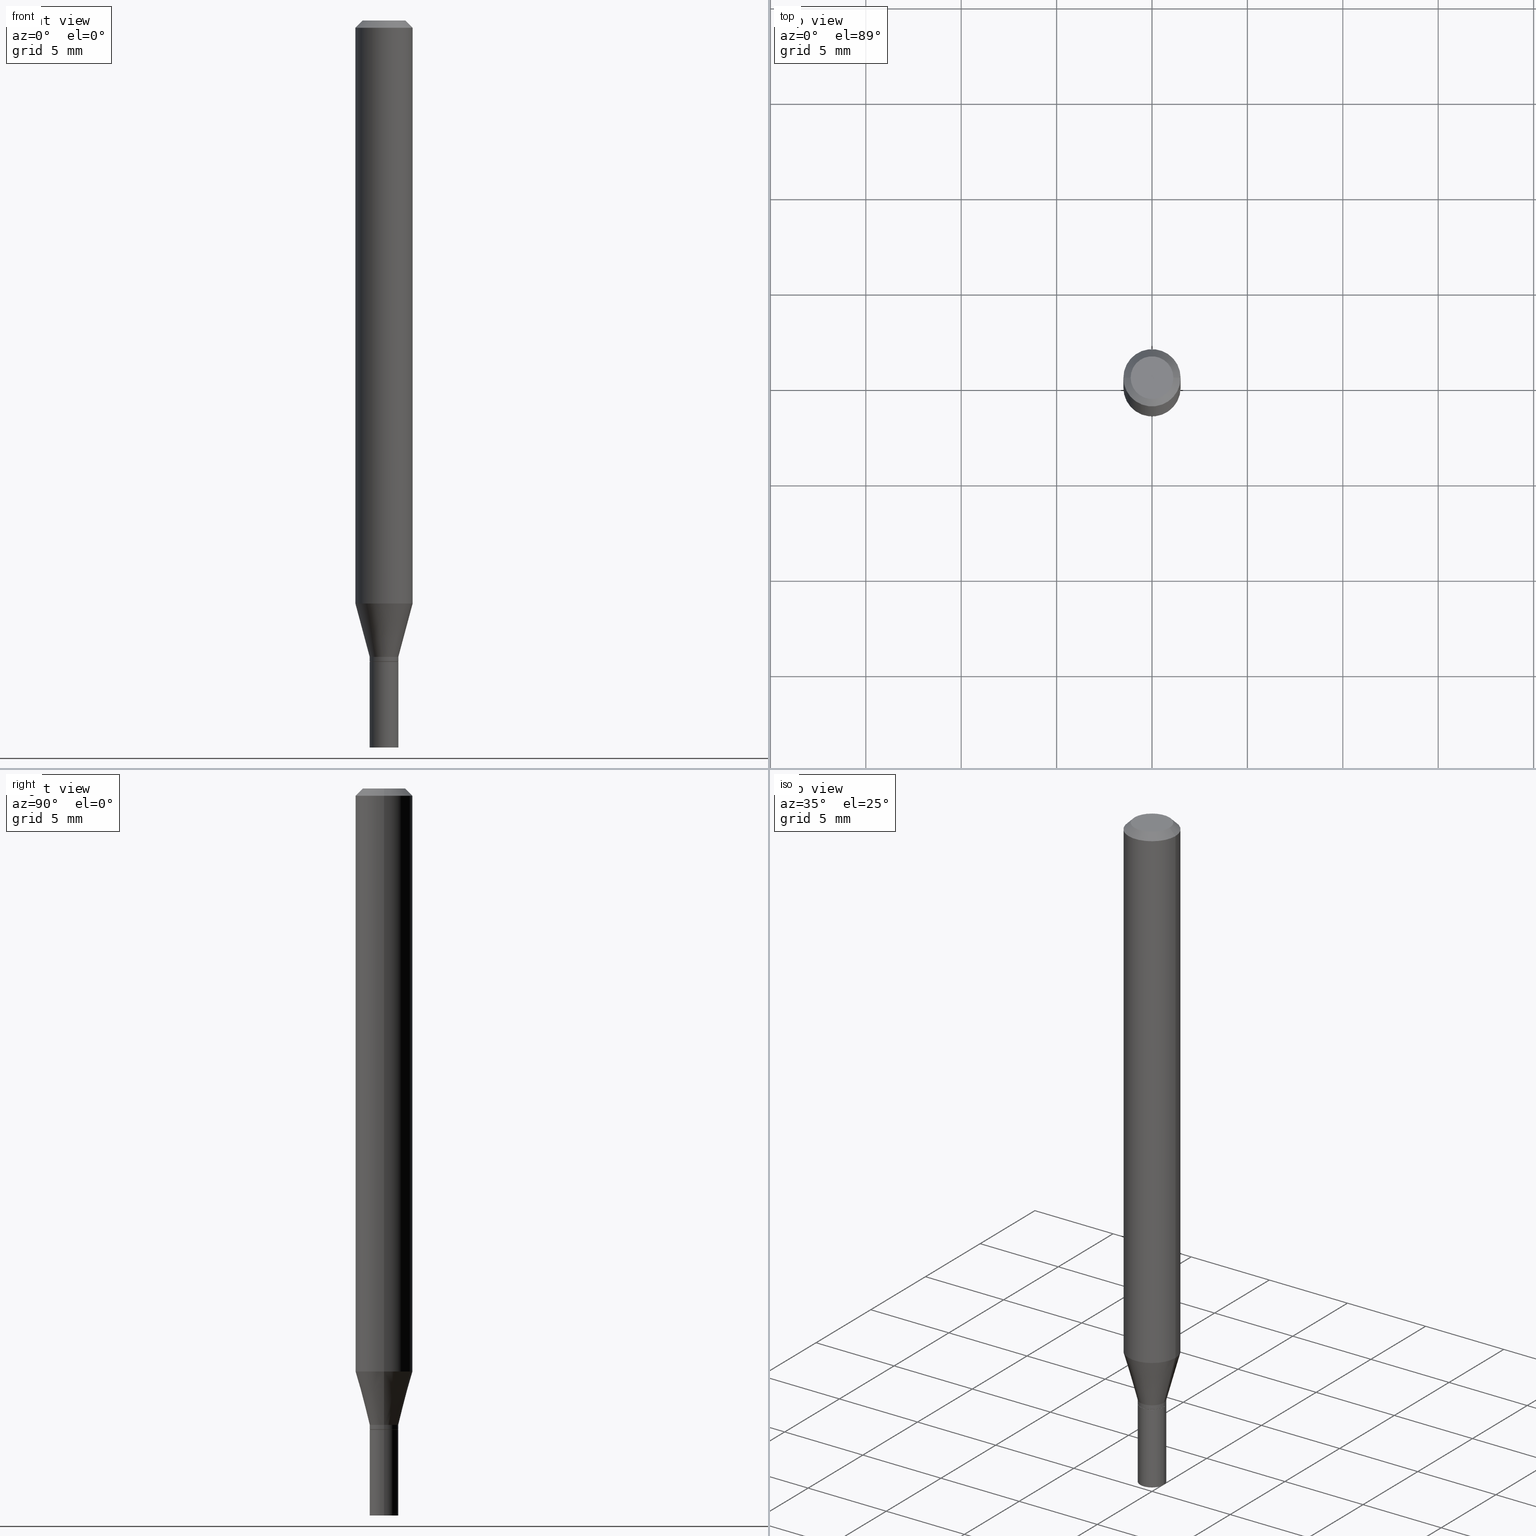
[diagram: canonical four-view strip — front | top / right | iso, engineering-drawing reading convention]
A machine part, canonical four-view strip (front | top / right | iso — engineering-drawing reading convention). The complete STEP part file that produces these views, byte-faithful:
ISO-10303-21;
HEADER;
FILE_DESCRIPTION (( 'STEP AP203' ),
    '1' );
FILE_NAME ('48523.STEP',
    '2024-03-12T19:28:40',
    ( '' ),
    ( '' ),
    'SwSTEP 2.0',
    'SolidWorks 2023',
    '' );
FILE_SCHEMA (( 'CONFIG_CONTROL_DESIGN' ));
ENDSEC;

DATA;
#1 = CARTESIAN_POINT ( 'NONE',  ( 0.02954999999999999988, -2.063465471256291914E-16, 1.440910237247699070E-30 ) ) ;
#2 = DIRECTION ( 'NONE',  ( -2.445468806185136877E-29, 3.491481338843145188E-15, 1.000000000000000000 ) ) ;
#3 = DIRECTION ( 'NONE',  ( -2.445468806185136597E-29, 3.491481338843145583E-15, 1.000000000000000000 ) ) ;
#4 = CIRCLE ( 'NONE', #429, 0.02954999999999992008 ) ;
#5 = CC_DESIGN_SECURITY_CLASSIFICATION ( #150, ( #104 ) ) ;
#6 = EDGE_CURVE ( 'NONE', #121, #237, #211, .T. ) ;
#7 = EDGE_CURVE ( 'NONE', #201, #387, #37, .T. ) ;
#8 = DIRECTION ( 'NONE',  ( 1.000000000000000000, -6.982962677686279332E-15, 0.000000000000000000 ) ) ;
#9 = DATE_TIME_ROLE ( 'creation_date' ) ;
#10 = VECTOR ( 'NONE', #200, 39.37007874015748854 ) ;
#11 = VERTEX_POINT ( 'NONE', #28 ) ;
#12 = LINE ( 'NONE', #383, #225 ) ;
#13 = DIRECTION ( 'NONE',  ( -2.438088387897960049E-29, 3.491481338843145188E-15, 1.000000000000000000 ) ) ;
#14 = AXIS2_PLACEMENT_3D ( 'NONE', #233, #312, #123 ) ;
#15 = AXIS2_PLACEMENT_3D ( 'NONE', #368, #31, #425 ) ;
#16 = ORIENTED_EDGE ( 'NONE', *, *, #205, .F. ) ;
#17 = CARTESIAN_POINT ( 'NONE',  ( 3.668203209277705088E-31, -5.237222008264718399E-17, -0.01499999999999999944 ) ) ;
#18 = CARTESIAN_POINT ( 'NONE',  ( -8.641182519006289553E-45, 1.233731848647591164E-30, 3.533548453838711334E-16 ) ) ;
#19 = ORIENTED_EDGE ( 'NONE', *, *, #298, .F. ) ;
#20 = LINE ( 'NONE', #206, #75 ) ;
#21 = ORIENTED_EDGE ( 'NONE', *, *, #30, .F. ) ;
#22 = CARTESIAN_POINT ( 'NONE',  ( -0.05904999999999999832, -3.780343132802594460E-15, -1.202904501176718099 ) ) ;
#23 = DIRECTION ( 'NONE',  ( 1.000000000000000000, -6.982962677686273021E-15, 0.000000000000000000 ) ) ;
#24 = AXIS2_PLACEMENT_3D ( 'NONE', #176, #105, #251 ) ;
#25 = VERTEX_POINT ( 'NONE', #175 ) ;
#26 = CARTESIAN_POINT ( 'NONE',  ( 2.941665434447356051E-29, -4.199918618268933165E-15, -1.202904501176718099 ) ) ;
#27 = PRODUCT ( '48523', '48523', '', ( #400 ) ) ;
#28 = CARTESIAN_POINT ( 'NONE',  ( -0.02954999999999992008, -4.406820395935182785E-15, -1.322300000000000253 ) ) ;
#29 = FACE_OUTER_BOUND ( 'NONE', #452, .T. ) ;
#30 = EDGE_CURVE ( 'NONE', #356, #25, #156, .T. ) ;
#31 = DIRECTION ( 'NONE',  ( 2.445468806185136597E-29, -3.491481338843145583E-15, -1.000000000000000000 ) ) ;
#32 = CONICAL_SURFACE ( 'NONE', #189, 0.05905000000000001914, 0.7853981633974372878 ) ;
#33 = EDGE_CURVE ( 'NONE', #35, #121, #398, .T. ) ;
#34 = FACE_OUTER_BOUND ( 'NONE', #195, .T. ) ;
#35 = VERTEX_POINT ( 'NONE', #255 ) ;
#36 = APPROVAL_DATE_TIME ( #352, #135 ) ;
#37 = LINE ( 'NONE', #330, #188 ) ;
#38 = LENGTH_MEASURE_WITH_UNIT ( LENGTH_MEASURE( 0.02539999999999999897 ), #364 );
#39 = AXIS2_PLACEMENT_3D ( 'NONE', #17, #203, #308 ) ;
#40 = AXIS2_PLACEMENT_3D ( 'NONE', #461, #210, #424 ) ;
#41 = PERSON_AND_ORGANIZATION ( #159, #318 ) ;
#42 = EDGE_LOOP ( 'NONE', ( #21, #406, #268, #404 ) ) ;
#43 = ADVANCED_FACE ( 'NONE', ( #73 ), #220, .F. ) ;
#44 = COORDINATED_UNIVERSAL_TIME_OFFSET ( 5, 0, .BEHIND. ) ;
#45 = ORIENTED_EDGE ( 'NONE', *, *, #183, .F. ) ;
#46 = ADVANCED_FACE ( 'NONE', ( #128 ), #154, .T. ) ;
#47 = CONICAL_SURFACE ( 'NONE', #80, 0.02904999999999999596, 0.7853981633974739252 ) ;
#48 = AXIS2_PLACEMENT_3D ( 'NONE', #323, #288, #426 ) ;
#49 = CARTESIAN_POINT ( 'NONE',  ( 0.000000000000000000, 0.000000000000000000, 0.000000000000000000 ) ) ;
#50 = VERTEX_POINT ( 'NONE', #120 ) ;
#51 = DIRECTION ( 'NONE',  ( 1.000000000000000000, -6.982962677686279332E-15, 0.000000000000000000 ) ) ;
#52 = VERTEX_POINT ( 'NONE', #278 ) ;
#53 = LINE ( 'NONE', #300, #89 ) ;
#54 = DIRECTION ( 'NONE',  ( 1.000000000000000000, -6.982962677686261977E-15, 0.000000000000000000 ) ) ;
#55 = VECTOR ( 'NONE', #140, 39.37007874015748143 ) ;
#56 = ORIENTED_EDGE ( 'NONE', *, *, #281, .T. ) ;
#57 = CARTESIAN_POINT ( 'NONE',  ( -0.02954999999999992702, -4.374349619483941241E-15, -1.313000000000000167 ) ) ;
#58 = FACE_OUTER_BOUND ( 'NONE', #142, .T. ) ;
#59 = EDGE_LOOP ( 'NONE', ( #444, #146, #381, #155 ) ) ;
#60 = DIRECTION ( 'NONE',  ( 1.000000000000000000, -6.982962677686266711E-15, 4.876176775795935793E-29 ) ) ;
#61 = ORIENTED_EDGE ( 'NONE', *, *, #152, .F. ) ;
#62 = ADVANCED_FACE ( 'NONE', ( #81 ), #447, .T. ) ;
#63 = DIRECTION ( 'NONE',  ( 1.000000000000000000, -6.982962677686261977E-15, 0.000000000000000000 ) ) ;
#64 = VECTOR ( 'NONE', #125, 39.37007874015748143 ) ;
#65 = APPROVAL_PERSON_ORGANIZATION ( #70, #78, #326 ) ;
#66 = APPROVAL_DATE_TIME ( #422, #78 ) ;
#67 = EDGE_CURVE ( 'NONE', #387, #229, #391, .T. ) ;
#68 = ORIENTED_EDGE ( 'NONE', *, *, #226, .T. ) ;
#69 = CIRCLE ( 'NONE', #296, 0.05904999999999999832 ) ;
#70 = PERSON_AND_ORGANIZATION ( #159, #318 ) ;
#71 = DIRECTION ( 'NONE',  ( 0.7071067811865656694, -2.468850131082446387E-15, 0.7071067811865294761 ) ) ;
#72 = EDGE_CURVE ( 'NONE', #52, #437, #360, .T. ) ;
#73 = FACE_OUTER_BOUND ( 'NONE', #339, .T. ) ;
#74 = CALENDAR_DATE ( 2024, 12, 3 ) ;
#75 = VECTOR ( 'NONE', #443, 39.37007874015748854 ) ;
#76 = LOCAL_TIME ( 15, 28, 40.00000000000000000, #218 ) ;
#77 = ORIENTED_EDGE ( 'NONE', *, *, #366, .F. ) ;
#78 = APPROVAL ( #328, 'UNSPECIFIED' ) ;
#79 = VERTEX_POINT ( 'NONE', #92 ) ;
#80 = AXIS2_PLACEMENT_3D ( 'NONE', #91, #386, #242 ) ;
#81 = FACE_OUTER_BOUND ( 'NONE', #59, .T. ) ;
#82 = ORIENTED_EDGE ( 'NONE', *, *, #7, .T. ) ;
#83 = APPROVAL ( #399, 'UNSPECIFIED' ) ;
#84 = FACE_OUTER_BOUND ( 'NONE', #385, .T. ) ;
#85 = ORIENTED_EDGE ( 'NONE', *, *, #33, .T. ) ;
#86 = DIRECTION ( 'NONE',  ( 1.000000000000000000, -6.982962677686273021E-15, 0.000000000000000000 ) ) ;
#87 = EDGE_LOOP ( 'NONE', ( #371, #223, #369, #118 ) ) ;
#88 = DIRECTION ( 'NONE',  ( -2.445468806185136597E-29, 3.491481338843145583E-15, 1.000000000000000000 ) ) ;
#89 = VECTOR ( 'NONE', #438, 39.37007874015748143 ) ;
#90 = ORIENTED_EDGE ( 'NONE', *, *, #122, .F. ) ;
#91 = CARTESIAN_POINT ( 'NONE',  ( 3.234866136821698561E-29, -4.618531515021712857E-15, -1.322800000000000198 ) ) ;
#92 = CARTESIAN_POINT ( 'NONE',  ( 0.02954999999999999988, -5.443568555390347787E-15, -1.500000000000000222 ) ) ;
#93 = ADVANCED_FACE ( 'NONE', ( #58 ), #194, .F. ) ;
#94 = ORIENTED_EDGE ( 'NONE', *, *, #67, .F. ) ;
#95 = MANIFOLD_SOLID_BREP ( 'Body-Move/Copy2[1]', #148 ) ;
#96 = CARTESIAN_POINT ( 'NONE',  ( 0.05904999999999999832, -4.612262564386308085E-15, -1.202904501176718099 ) ) ;
#97 = VECTOR ( 'NONE', #71, 39.37007874015748143 ) ;
#98 = CIRCLE ( 'NONE', #264, 0.02954999999999992702 ) ;
#99 = CARTESIAN_POINT ( 'NONE',  ( 0.000000000000000000, 0.000000000000000000, 0.000000000000000000 ) ) ;
#100 = CYLINDRICAL_SURFACE ( 'NONE', #40, 0.02954999999999999988 ) ;
#101 = PERSON_AND_ORGANIZATION ( #159, #318 ) ;
#102 = VECTOR ( 'NONE', #244, 39.37007874015748143 ) ;
#103 = PERSON_AND_ORGANIZATION ( #159, #318 ) ;
#104 = PRODUCT_DEFINITION_FORMATION_WITH_SPECIFIED_SOURCE ( 'ANY', '', #27, .NOT_KNOWN. ) ;
#105 = DIRECTION ( 'NONE',  ( -2.445468806185136597E-29, 3.491481338843145583E-15, 1.000000000000000000 ) ) ;
#106 = PERSON_AND_ORGANIZATION ( #159, #318 ) ;
#107 = DIRECTION ( 'NONE',  ( -2.445468806185136597E-29, 3.491481338843145583E-15, 1.000000000000000000 ) ) ;
#108 = APPROVAL_ROLE ( '' ) ;
#109 = ORIENTED_EDGE ( 'NONE', *, *, #165, .T. ) ;
#110 = CONICAL_SURFACE ( 'NONE', #306, 0.02904999999999999596, 0.7853981633974739252 ) ;
#111 = CONICAL_SURFACE ( 'NONE', #15, 0.05905000000000001914, 0.7853981633974372878 ) ;
#112 = DATE_TIME_ROLE ( 'classification_date' ) ;
#113 = EDGE_CURVE ( 'NONE', #25, #356, #331, .T. ) ;
#114 = EDGE_CURVE ( 'NONE', #186, #201, #245, .T. ) ;
#115 = LINE ( 'NONE', #1, #316 ) ;
#116 = AXIS2_PLACEMENT_3D ( 'NONE', #262, #107, #337 ) ;
#117 = DIRECTION ( 'NONE',  ( 1.000000000000000000, -6.982962677686265922E-15, 4.876176775795935793E-29 ) ) ;
#118 = ORIENTED_EDGE ( 'NONE', *, *, #6, .F. ) ;
#119 = DIRECTION ( 'NONE',  ( -2.445468806185136597E-29, 3.491481338843145583E-15, 1.000000000000000000 ) ) ;
#120 = CARTESIAN_POINT ( 'NONE',  ( -0.02954999999999992702, -4.077346376143267456E-15, -1.313000000000000167 ) ) ;
#121 = VERTEX_POINT ( 'NONE', #173 ) ;
#122 = EDGE_CURVE ( 'NONE', #275, #79, #343, .T. ) ;
#123 = DIRECTION ( 'NONE',  ( 1.000000000000000000, -6.982962677686267499E-15, 4.876176775795936353E-29 ) ) ;
#124 = ORIENTED_EDGE ( 'NONE', *, *, #234, .T. ) ;
#125 = DIRECTION ( 'NONE',  ( -0.7071067811865396902, 2.468850131082174625E-15, -0.7071067811865553443 ) ) ;
#126 = AXIS2_PLACEMENT_3D ( 'NONE', #239, #286, #23 ) ;
#127 = ADVANCED_FACE ( 'NONE', ( #29 ), #170, .T. ) ;
#128 = FACE_OUTER_BOUND ( 'NONE', #376, .T. ) ;
#129 = ORIENTED_EDGE ( 'NONE', *, *, #174, .T. ) ;
#130 = FACE_OUTER_BOUND ( 'NONE', #401, .T. ) ;
#131 = DIRECTION ( 'NONE',  ( -2.445468806185136877E-29, 3.491481338843145188E-15, 1.000000000000000000 ) ) ;
#132 = ORIENTED_EDGE ( 'NONE', *, *, #370, .F. ) ;
#133 = COORDINATED_UNIVERSAL_TIME_OFFSET ( 5, 0, .BEHIND. ) ;
#134 = ORIENTED_EDGE ( 'NONE', *, *, #172, .F. ) ;
#135 = APPROVAL ( #333, 'UNSPECIFIED' ) ;
#136 = AXIS2_PLACEMENT_3D ( 'NONE', #196, #119, #388 ) ;
#137 = PERSON_AND_ORGANIZATION ( #159, #318 ) ;
#138 = DIRECTION ( 'NONE',  ( -2.445468806185136877E-29, 3.491481338843145188E-15, 1.000000000000000000 ) ) ;
#139 = CALENDAR_DATE ( 2024, 12, 3 ) ;
#140 = DIRECTION ( 'NONE',  ( -2.445468806185136877E-29, 3.491481338843145188E-15, 1.000000000000000000 ) ) ;
#141 = FACE_OUTER_BOUND ( 'NONE', #313, .T. ) ;
#142 = EDGE_LOOP ( 'NONE', ( #61, #90 ) ) ;
#143 =( NAMED_UNIT ( * ) PLANE_ANGLE_UNIT ( ) SI_UNIT ( $, .RADIAN. ) );
#144 = VECTOR ( 'NONE', #411, 39.37007874015748143 ) ;
#145 = DIRECTION ( 'NONE',  ( -1.000000000000000000, 6.982962677686265922E-15, -4.876176775795935793E-29 ) ) ;
#146 = ORIENTED_EDGE ( 'NONE', *, *, #412, .T. ) ;
#147 = DIRECTION ( 'NONE',  ( 2.438088387897960049E-29, -3.491481338843145188E-15, -1.000000000000000000 ) ) ;
#148 = CLOSED_SHELL ( 'NONE', ( #421, #93, #46, #427 ) ) ;
#149 = AXIS2_PLACEMENT_3D ( 'NONE', #99, #177, #249 ) ;
#150 = SECURITY_CLASSIFICATION ( '', '', #458 ) ;
#151 = APPROVAL_ROLE ( '' ) ;
#152 = EDGE_CURVE ( 'NONE', #79, #275, #432, .T. ) ;
#153 = CARTESIAN_POINT ( 'NONE',  ( 0.000000000000000000, 0.000000000000000000, 0.000000000000000000 ) ) ;
#154 = CYLINDRICAL_SURFACE ( 'NONE', #434, 0.02954999999999999988 ) ;
#155 = ORIENTED_EDGE ( 'NONE', *, *, #181, .F. ) ;
#156 = CIRCLE ( 'NONE', #423, 0.04404999999999999888 ) ;
#157 = DIRECTION ( 'NONE',  ( -2.445468806185136597E-29, 3.491481338843145583E-15, 1.000000000000000000 ) ) ;
#158 = CIRCLE ( 'NONE', #39, 0.05905000000000001914 ) ;
#159 = PERSON ( 'UNSPECIFIED', 'UNSPECIFIED', 'UNSPECIFIED', ('UNSPECIFIED'), ('UNSPECIFIED'), ('UNSPECIFIED') ) ;
#160 = LOCAL_TIME ( 15, 28, 40.00000000000000000, #133 ) ;
#161 = ORIENTED_EDGE ( 'NONE', *, *, #301, .T. ) ;
#162 = CARTESIAN_POINT ( 'NONE',  ( -0.05905000000000002608, -1.706569933709451418E-15, -0.01499999999999999944 ) ) ;
#163 = DIRECTION ( 'NONE',  ( 1.000000000000000000, -6.982962677686265922E-15, 4.819687581474398999E-29 ) ) ;
#164 = ORIENTED_EDGE ( 'NONE', *, *, #152, .T. ) ;
#165 = EDGE_CURVE ( 'NONE', #237, #11, #4, .T. ) ;
#166 = CARTESIAN_POINT ( 'NONE',  ( 3.234866136821698561E-29, -4.618531515021712857E-15, -1.322800000000000198 ) ) ;
#167 = EDGE_LOOP ( 'NONE', ( #77, #305, #124, #68 ) ) ;
#168 = CARTESIAN_POINT ( 'NONE',  ( -0.05905000000000001914, 3.599717260347269535E-16, -0.01499999999999999944 ) ) ;
#169 = CIRCLE ( 'NONE', #136, 0.02904999999999999596 ) ;
#170 = CYLINDRICAL_SURFACE ( 'NONE', #149, 0.05905000000000000526 ) ;
#171 = EDGE_LOOP ( 'NONE', ( #232, #161, #315, #45 ) ) ;
#172 = EDGE_CURVE ( 'NONE', #275, #52, #325, .T. ) ;
#173 = CARTESIAN_POINT ( 'NONE',  ( 0.02904999999999999596, -4.821386580808499461E-15, -1.322800000000000198 ) ) ;
#174 = EDGE_CURVE ( 'NONE', #186, #229, #455, .T. ) ;
#175 = CARTESIAN_POINT ( 'NONE',  ( -0.04404999999999999888, 3.337856159934041534E-16, 3.533548453838689148E-16 ) ) ;
#176 = CARTESIAN_POINT ( 'NONE',  ( 3.210900542521084585E-29, -4.584314997901050598E-15, -1.313000000000000167 ) ) ;
#177 = DIRECTION ( 'NONE',  ( -2.445468806185136597E-29, 3.491481338843145583E-15, 1.000000000000000000 ) ) ;
#178 = CARTESIAN_POINT ( 'NONE',  ( 0.02904999999999999596, -4.821386580808499461E-15, -1.322800000000000198 ) ) ;
#179 = AXIS2_PLACEMENT_3D ( 'NONE', #416, #302, #380 ) ;
#180 = CARTESIAN_POINT ( 'NONE',  ( 3.210900542521084585E-29, -4.584314997901050598E-15, -1.313000000000000167 ) ) ;
#181 = EDGE_CURVE ( 'NONE', #50, #284, #98, .T. ) ;
#182 = DATE_AND_TIME ( #139, #307 ) ;
#183 = EDGE_CURVE ( 'NONE', #284, #201, #20, .T. ) ;
#184 = CALENDAR_DATE ( 2024, 12, 3 ) ;
#185 = AXIS2_PLACEMENT_3D ( 'NONE', #440, #384, #54 ) ;
#186 = VERTEX_POINT ( 'NONE', #22 ) ;
#187 = DIRECTION ( 'NONE',  ( 0.000000000000000000, 0.000000000000000000, 1.000000000000000000 ) ) ;
#188 = VECTOR ( 'NONE', #2, 39.37007874015748143 ) ;
#189 = AXIS2_PLACEMENT_3D ( 'NONE', #314, #236, #238 ) ;
#190 = DATE_AND_TIME ( #430, #160 ) ;
#191 = DIRECTION ( 'NONE',  ( -2.445468806185136597E-29, 3.491481338843145583E-15, 1.000000000000000000 ) ) ;
#192 = ORIENTED_EDGE ( 'NONE', *, *, #122, .T. ) ;
#193 = DIRECTION ( 'NONE',  ( -2.445468806185136597E-29, 3.491481338843145583E-15, 1.000000000000000000 ) ) ;
#194 = PLANE ( 'NONE',  #285 ) ;
#195 = EDGE_LOOP ( 'NONE', ( #56, #272 ) ) ;
#196 = CARTESIAN_POINT ( 'NONE',  ( 3.234866136821698561E-29, -4.618531515021712857E-15, -1.322800000000000198 ) ) ;
#197 = AXIS2_PLACEMENT_3D ( 'NONE', #49, #191, #271 ) ;
#198 =( GEOMETRIC_REPRESENTATION_CONTEXT ( 3 ) GLOBAL_UNCERTAINTY_ASSIGNED_CONTEXT ( ( #408 ) ) GLOBAL_UNIT_ASSIGNED_CONTEXT ( ( #365, #143, #332 ) ) REPRESENTATION_CONTEXT ( 'NONE', 'WORKASPACE' ) );
#199 = ORIENTED_EDGE ( 'NONE', *, *, #226, .F. ) ;
#200 = DIRECTION ( 'NONE',  ( -0.2588190451025206285, 5.211531920934544731E-15, 0.9659258262890682012 ) ) ;
#201 = VERTEX_POINT ( 'NONE', #96 ) ;
#202 = DIMENSIONAL_EXPONENTS ( 1.000000000000000000, 0.000000000000000000, 0.000000000000000000, 0.000000000000000000, 0.000000000000000000, 0.000000000000000000, 0.000000000000000000 ) ;
#203 = DIRECTION ( 'NONE',  ( -2.445468806185136597E-29, 3.491481338843145583E-15, 1.000000000000000000 ) ) ;
#204 = EDGE_LOOP ( 'NONE', ( #109, #378, #342, #320 ) ) ;
#205 = EDGE_CURVE ( 'NONE', #121, #35, #169, .T. ) ;
#206 = CARTESIAN_POINT ( 'NONE',  ( 0.02954999999999992702, -4.790661545026680209E-15, -1.313000000000000167 ) ) ;
#207 = CARTESIAN_POINT ( 'NONE',  ( 2.063465471256615347E-16, 0.02954999999999538204, -1.322800000000000198 ) ) ;
#208 = DIRECTION ( 'NONE',  ( 1.000000000000000000, -6.982962677686279332E-15, 0.000000000000000000 ) ) ;
#209 = CC_DESIGN_APPROVAL ( #83, ( #241 ) ) ;
#210 = DIRECTION ( 'NONE',  ( -2.445468806185136597E-29, 3.491481338843145583E-15, 1.000000000000000000 ) ) ;
#211 = LINE ( 'NONE', #178, #97 ) ;
#212 = LINE ( 'NONE', #358, #102 ) ;
#213 = ADVANCED_FACE ( 'NONE', ( #407 ), #405, .T. ) ;
#214 = ORIENTED_EDGE ( 'NONE', *, *, #370, .T. ) ;
#215 = DIRECTION ( 'NONE',  ( -2.445468806185136597E-29, 3.491481338843145583E-15, 1.000000000000000000 ) ) ;
#216 = AXIS2_PLACEMENT_3D ( 'NONE', #344, #446, #60 ) ;
#217 = EDGE_LOOP ( 'NONE', ( #164, #428, #235, #132 ) ) ;
#218 = COORDINATED_UNIVERSAL_TIME_OFFSET ( 5, 0, .BEHIND. ) ;
#219 = APPLICATION_PROTOCOL_DEFINITION ( 'international standard', 'config_control_design', 1994, #294 ) ;
#220 = PLANE ( 'NONE',  #292 ) ;
#221 = ORIENTED_EDGE ( 'NONE', *, *, #6, .T. ) ;
#222 = AXIS2_PLACEMENT_3D ( 'NONE', #283, #393, #357 ) ;
#223 = ORIENTED_EDGE ( 'NONE', *, *, #298, .T. ) ;
#224 = ORIENTED_EDGE ( 'NONE', *, *, #33, .F. ) ;
#225 = VECTOR ( 'NONE', #449, 39.37007874015748143 ) ;
#226 = EDGE_CURVE ( 'NONE', #229, #387, #158, .T. ) ;
#227 = LOCAL_TIME ( 15, 28, 40.00000000000000000, #44 ) ;
#228 = PLANE ( 'NONE',  #462 ) ;
#229 = VERTEX_POINT ( 'NONE', #162 ) ;
#230 = CARTESIAN_POINT ( 'NONE',  ( -0.02954999999999999988, -4.717911383226106554E-15, -1.500000000000000222 ) ) ;
#231 = DIRECTION ( 'NONE',  ( -2.445468806185136597E-29, 3.491481338843145583E-15, 1.000000000000000000 ) ) ;
#232 = ORIENTED_EDGE ( 'NONE', *, *, #445, .T. ) ;
#233 = CARTESIAN_POINT ( 'NONE',  ( 0.000000000000000000, 0.000000000000000000, 0.000000000000000000 ) ) ;
#234 = EDGE_CURVE ( 'NONE', #25, #229, #266, .T. ) ;
#235 = ORIENTED_EDGE ( 'NONE', *, *, #281, .F. ) ;
#236 = DIRECTION ( 'NONE',  ( 2.445468806185136597E-29, -3.491481338843145583E-15, -1.000000000000000000 ) ) ;
#237 = VERTEX_POINT ( 'NONE', #317 ) ;
#238 = DIRECTION ( 'NONE',  ( -1.000000000000000000, 6.982962677686266711E-15, 0.000000000000000000 ) ) ;
#239 = CARTESIAN_POINT ( 'NONE',  ( 2.941665434447356051E-29, -4.199918618268933165E-15, -1.202904501176718099 ) ) ;
#240 = ORIENTED_EDGE ( 'NONE', *, *, #30, .T. ) ;
#241 = PRODUCT_DEFINITION ( 'UNKNOWN', '', #104, #439 ) ;
#242 = DIRECTION ( 'NONE',  ( 1.000000000000000000, -6.982962677686278543E-15, 0.000000000000000000 ) ) ;
#243 = DIRECTION ( 'NONE',  ( -2.445468806185136597E-29, 3.491481338843145583E-15, 1.000000000000000000 ) ) ;
#244 = DIRECTION ( 'NONE',  ( -2.445468806185136877E-29, 3.491481338843145188E-15, 1.000000000000000000 ) ) ;
#245 = CIRCLE ( 'NONE', #126, 0.05904999999999999832 ) ;
#246 = APPROVAL_PERSON_ORGANIZATION ( #41, #135, #151 ) ;
#247 = APPLICATION_CONTEXT ( 'configuration controlled 3d designs of mechanical parts and assemblies' ) ;
#248 = EDGE_CURVE ( 'NONE', #237, #284, #350, .T. ) ;
#249 = DIRECTION ( 'NONE',  ( 1.000000000000000000, -6.982962677686267499E-15, 4.876176775795936353E-29 ) ) ;
#250 = ADVANCED_FACE ( 'NONE', ( #84 ), #454, .T. ) ;
#251 = DIRECTION ( 'NONE',  ( 1.000000000000000000, -6.982962677686279332E-15, 0.000000000000000000 ) ) ;
#252 = AXIS2_PLACEMENT_3D ( 'NONE', #153, #187, #297 ) ;
#253 = PERSON_AND_ORGANIZATION_ROLE ( 'design_supplier' ) ;
#254 = MANIFOLD_SOLID_BREP ( 'Body-Move/Copy2[2]', #303 ) ;
#255 = CARTESIAN_POINT ( 'NONE',  ( -0.02904999999999999596, -4.409469623109293197E-15, -1.322800000000000198 ) ) ;
#256 = COORDINATED_UNIVERSAL_TIME_OFFSET ( 5, 0, .BEHIND. ) ;
#257 = CC_DESIGN_DATE_AND_TIME_ASSIGNMENT ( #433, #112, ( #150 ) ) ;
#258 = CARTESIAN_POINT ( 'NONE',  ( -8.641182519006289553E-45, 1.233731848647591164E-30, 3.533548453838711334E-16 ) ) ;
#259 = DIRECTION ( 'NONE',  ( 2.438088387897960049E-29, -3.491481338843145188E-15, -1.000000000000000000 ) ) ;
#260 = DIRECTION ( 'NONE',  ( 1.000000000000000000, -6.982962677686265922E-15, 4.819687581474398999E-29 ) ) ;
#261 = APPLICATION_PROTOCOL_DEFINITION ( 'international standard', 'config_control_design', 1994, #247 ) ;
#262 = CARTESIAN_POINT ( 'NONE',  ( 3.234866136821698561E-29, -4.618531515021712857E-15, -1.322800000000000198 ) ) ;
#263 = SHAPE_DEFINITION_REPRESENTATION ( #309, #409 ) ;
#264 = AXIS2_PLACEMENT_3D ( 'NONE', #420, #243, #208 ) ;
#265 = APPROVAL_PERSON_ORGANIZATION ( #327, #83, #108 ) ;
#266 = LINE ( 'NONE', #168, #64 ) ;
#267 = DIRECTION ( 'NONE',  ( -2.445468806185136597E-29, 3.491481338843145583E-15, 1.000000000000000000 ) ) ;
#268 = ORIENTED_EDGE ( 'NONE', *, *, #67, .T. ) ;
#269 = ADVANCED_FACE ( 'NONE', ( #130 ), #110, .T. ) ;
#270 = CARTESIAN_POINT ( 'NONE',  ( 0.02954999999999992355, -2.063465471256286490E-16, 1.440910237247695217E-30 ) ) ;
#271 = DIRECTION ( 'NONE',  ( 1.000000000000000000, -6.982962677686266711E-15, 4.876176775795935793E-29 ) ) ;
#272 = ORIENTED_EDGE ( 'NONE', *, *, #72, .T. ) ;
#273 = CARTESIAN_POINT ( 'NONE',  ( 3.234866136821698561E-29, -4.618531515021712857E-15, -1.322800000000000198 ) ) ;
#274 = PRODUCT_RELATED_PRODUCT_CATEGORY ( 'detail', '', ( #27 ) ) ;
#275 = VERTEX_POINT ( 'NONE', #230 ) ;
#276 = PLANE ( 'NONE',  #453 ) ;
#277 = CARTESIAN_POINT ( 'NONE',  ( 3.210900542521084585E-29, -4.584314997901050598E-15, -1.313000000000000167 ) ) ;
#278 = CARTESIAN_POINT ( 'NONE',  ( -0.02954999999999999988, -4.717911383226106554E-15, -1.322800000000000198 ) ) ;
#279 = ORIENTED_EDGE ( 'NONE', *, *, #412, .F. ) ;
#280 = DIRECTION ( 'NONE',  ( 1.000000000000000000, -6.982962677686278543E-15, 0.000000000000000000 ) ) ;
#281 = EDGE_CURVE ( 'NONE', #437, #52, #451, .T. ) ;
#282 = FACE_OUTER_BOUND ( 'NONE', #217, .T. ) ;
#283 = CARTESIAN_POINT ( 'NONE',  ( 3.668203209277704895E-29, -5.237222008264718177E-15, -1.500000000000000222 ) ) ;
#284 = VERTEX_POINT ( 'NONE', #354 ) ;
#285 = AXIS2_PLACEMENT_3D ( 'NONE', #435, #345, #117 ) ;
#286 = DIRECTION ( 'NONE',  ( -2.445468806185136597E-29, 3.491481338843145583E-15, 1.000000000000000000 ) ) ;
#287 = PERSON_AND_ORGANIZATION ( #159, #318 ) ;
#288 = DIRECTION ( 'NONE',  ( -2.445468806185136597E-29, 3.491481338843145583E-15, 1.000000000000000000 ) ) ;
#289 = ADVANCED_FACE ( 'NONE', ( #340 ), #324, .T. ) ;
#290 = CARTESIAN_POINT ( 'NONE',  ( 3.668203209277704895E-29, -5.237222008264718177E-15, -1.500000000000000222 ) ) ;
#291 = CARTESIAN_POINT ( 'NONE',  ( 3.075995059520799729E-16, 0.04404999999999999888, 2.287766971589501637E-17 ) ) ;
#292 = AXIS2_PLACEMENT_3D ( 'NONE', #367, #13, #348 ) ;
#293 = AXIS2_PLACEMENT_3D ( 'NONE', #180, #3, #8 ) ;
#294 = APPLICATION_CONTEXT ( 'configuration controlled 3d designs of mechanical parts and assemblies' ) ;
#295 = ADVANCED_FACE ( 'NONE', ( #419 ), #32, .T. ) ;
#296 = AXIS2_PLACEMENT_3D ( 'NONE', #26, #157, #86 ) ;
#297 = DIRECTION ( 'NONE',  ( 1.000000000000000000, 0.000000000000000000, 0.000000000000000000 ) ) ;
#298 = EDGE_CURVE ( 'NONE', #35, #11, #12, .T. ) ;
#299 = COORDINATED_UNIVERSAL_TIME_OFFSET ( 5, 0, .BEHIND. ) ;
#300 = CARTESIAN_POINT ( 'NONE',  ( 0.05905000000000001914, -4.574846268510562433E-16, -0.01499999999999999944 ) ) ;
#301 = EDGE_CURVE ( 'NONE', #50, #186, #415, .T. ) ;
#302 = DIRECTION ( 'NONE',  ( -2.445468806185136597E-29, 3.491481338843145583E-15, 1.000000000000000000 ) ) ;
#303 = CLOSED_SHELL ( 'NONE', ( #213, #335, #459, #250, #289, #374, #127, #295, #436, #43, #269, #62 ) ) ;
#304 = CC_DESIGN_DATE_AND_TIME_ASSIGNMENT ( #190, #9, ( #241 ) ) ;
#305 = ORIENTED_EDGE ( 'NONE', *, *, #113, .F. ) ;
#306 = AXIS2_PLACEMENT_3D ( 'NONE', #273, #193, #280 ) ;
#307 = LOCAL_TIME ( 15, 28, 40.00000000000000000, #256 ) ;
#308 = DIRECTION ( 'NONE',  ( 1.000000000000000000, -6.982962677686266711E-15, 0.000000000000000000 ) ) ;
#309 = PRODUCT_DEFINITION_SHAPE ( 'NONE', 'NONE',  #241 ) ;
#310 = DIRECTION ( 'NONE',  ( 1.000000000000000000, -6.982962677686266711E-15, 4.876176775795935793E-29 ) ) ;
#311 = ORIENTED_EDGE ( 'NONE', *, *, #114, .F. ) ;
#312 = DIRECTION ( 'NONE',  ( -2.445468806185136597E-29, 3.491481338843145583E-15, 1.000000000000000000 ) ) ;
#313 = EDGE_LOOP ( 'NONE', ( #442, #465, #346, #311 ) ) ;
#314 = CARTESIAN_POINT ( 'NONE',  ( 3.668203209277705088E-31, -5.237222008264718399E-17, -0.01499999999999999944 ) ) ;
#315 = ORIENTED_EDGE ( 'NONE', *, *, #338, .F. ) ;
#316 = VECTOR ( 'NONE', #138, 39.37007874015748143 ) ;
#317 = CARTESIAN_POINT ( 'NONE',  ( 0.02954999999999992008, -4.823132321477920964E-15, -1.322300000000000253 ) ) ;
#318 = ORGANIZATION ( 'UNSPECIFIED', 'UNSPECIFIED', '' ) ;
#319 = CARTESIAN_POINT ( 'NONE',  ( 3.233643402418606881E-29, -4.616785774352292931E-15, -1.322300000000000253 ) ) ;
#320 = ORIENTED_EDGE ( 'NONE', *, *, #248, .F. ) ;
#321 = CARTESIAN_POINT ( 'NONE',  ( 0.05905000000000001914, -4.647161662000214077E-16, -0.01499999999999999944 ) ) ;
#322 = CARTESIAN_POINT ( 'NONE',  ( 0.02954999999999999988, -4.824878062147342468E-15, -1.322800000000000198 ) ) ;
#323 = CARTESIAN_POINT ( 'NONE',  ( 3.233643402418606881E-29, -4.616785774352292931E-15, -1.322300000000000253 ) ) ;
#324 = CONICAL_SURFACE ( 'NONE', #382, 0.02954999999999992702, 0.2617993877991493523 ) ;
#325 = LINE ( 'NONE', #463, #55 ) ;
#326 = APPROVAL_ROLE ( '' ) ;
#327 = PERSON_AND_ORGANIZATION ( #159, #318 ) ;
#328 = APPROVAL_STATUS ( 'not_yet_approved' ) ;
#329 = CC_DESIGN_PERSON_AND_ORGANIZATION_ASSIGNMENT ( #106, #363, ( #27 ) ) ;
#330 = CARTESIAN_POINT ( 'NONE',  ( 0.05905000000000000526, -4.123439461173741313E-16, 2.879382386107500571E-30 ) ) ;
#331 = CIRCLE ( 'NONE', #441, 0.04404999999999999888 ) ;
#332 =( NAMED_UNIT ( * ) SI_UNIT ( $, .STERADIAN. ) SOLID_ANGLE_UNIT ( ) );
#333 = APPROVAL_STATUS ( 'not_yet_approved' ) ;
#334 = DIRECTION ( 'NONE',  ( -2.445468806185136597E-29, 3.491481338843145583E-15, 1.000000000000000000 ) ) ;
#335 = ADVANCED_FACE ( 'NONE', ( #347 ), #47, .T. ) ;
#336 = VECTOR ( 'NONE', #131, 39.37007874015748143 ) ;
#337 = DIRECTION ( 'NONE',  ( 1.000000000000000000, -6.982962677686278543E-15, 0.000000000000000000 ) ) ;
#338 = EDGE_CURVE ( 'NONE', #201, #186, #69, .T. ) ;
#339 = EDGE_LOOP ( 'NONE', ( #16, #224 ) ) ;
#340 = FACE_OUTER_BOUND ( 'NONE', #171, .T. ) ;
#341 = CARTESIAN_POINT ( 'NONE',  ( 0.000000000000000000, 0.000000000000000000, 0.000000000000000000 ) ) ;
#342 = ORIENTED_EDGE ( 'NONE', *, *, #445, .F. ) ;
#343 = CIRCLE ( 'NONE', #222, 0.02954999999999999988 ) ;
#344 = CARTESIAN_POINT ( 'NONE',  ( 0.000000000000000000, 0.000000000000000000, 0.000000000000000000 ) ) ;
#345 = DIRECTION ( 'NONE',  ( -2.438088387897960049E-29, 3.491481338843145188E-15, 1.000000000000000000 ) ) ;
#346 = ORIENTED_EDGE ( 'NONE', *, *, #183, .T. ) ;
#347 = FACE_OUTER_BOUND ( 'NONE', #87, .T. ) ;
#348 = DIRECTION ( 'NONE',  ( 1.000000000000000000, -6.982962677686265922E-15, 4.876176775795935793E-29 ) ) ;
#349 = ORIENTED_EDGE ( 'NONE', *, *, #338, .T. ) ;
#350 = LINE ( 'NONE', #270, #144 ) ;
#351 = PERSON_AND_ORGANIZATION_ROLE ( 'creator' ) ;
#352 = DATE_AND_TIME ( #184, #403 ) ;
#353 = ORIENTED_EDGE ( 'NONE', *, *, #72, .F. ) ;
#354 = CARTESIAN_POINT ( 'NONE',  ( 0.02954999999999992702, -4.790661545026680209E-15, -1.313000000000000167 ) ) ;
#355 = CIRCLE ( 'NONE', #293, 0.02954999999999992702 ) ;
#356 = VERTEX_POINT ( 'NONE', #379 ) ;
#357 = DIRECTION ( 'NONE',  ( 1.000000000000000000, -6.982962677686261977E-15, 0.000000000000000000 ) ) ;
#358 = CARTESIAN_POINT ( 'NONE',  ( -0.02954999999999992355, 2.099653784171090617E-16, -1.453545319170320872E-30 ) ) ;
#359 = DIRECTION ( 'NONE',  ( 1.000000000000000000, -6.982962677686280910E-15, 0.000000000000000000 ) ) ;
#360 = CIRCLE ( 'NONE', #185, 0.02954999999999999988 ) ;
#361 = CC_DESIGN_APPROVAL ( #135, ( #104 ) ) ;
#362 = DIRECTION ( 'NONE',  ( -2.445468806185136597E-29, 3.491481338843145583E-15, 1.000000000000000000 ) ) ;
#363 = PERSON_AND_ORGANIZATION_ROLE ( 'design_owner' ) ;
#364 =( LENGTH_UNIT ( ) NAMED_UNIT ( * ) SI_UNIT ( $, .METRE. ) );
#365 =( CONVERSION_BASED_UNIT ( 'INCH', #38 ) LENGTH_UNIT ( ) NAMED_UNIT ( #202 ) );
#366 = EDGE_CURVE ( 'NONE', #356, #387, #53, .T. ) ;
#367 = CARTESIAN_POINT ( 'NONE',  ( 3.234866136821698561E-29, -4.618531515021712857E-15, -1.322800000000000198 ) ) ;
#368 = CARTESIAN_POINT ( 'NONE',  ( 3.668203209277705088E-31, -5.237222008264718399E-17, -0.01499999999999999944 ) ) ;
#369 = ORIENTED_EDGE ( 'NONE', *, *, #165, .F. ) ;
#370 = EDGE_CURVE ( 'NONE', #79, #437, #115, .T. ) ;
#371 = ORIENTED_EDGE ( 'NONE', *, *, #205, .T. ) ;
#372 = CONICAL_SURFACE ( 'NONE', #24, 0.02954999999999992702, 0.2617993877991493523 ) ;
#373 = CC_DESIGN_APPROVAL ( #78, ( #150 ) ) ;
#374 = ADVANCED_FACE ( 'NONE', ( #141 ), #372, .T. ) ;
#375 = PERSON_AND_ORGANIZATION_ROLE ( 'classification_officer' ) ;
#376 = EDGE_LOOP ( 'NONE', ( #134, #192, #214, #353 ) ) ;
#377 = DIRECTION ( 'NONE',  ( -2.445468806185136597E-29, 3.491481338843145583E-15, 1.000000000000000000 ) ) ;
#378 = ORIENTED_EDGE ( 'NONE', *, *, #390, .T. ) ;
#379 = CARTESIAN_POINT ( 'NONE',  ( 0.04404999999999999888, -3.798447818264455642E-16, 3.533548453838735986E-16 ) ) ;
#380 = DIRECTION ( 'NONE',  ( 1.000000000000000000, -6.982962677686266711E-15, 0.000000000000000000 ) ) ;
#381 = ORIENTED_EDGE ( 'NONE', *, *, #248, .T. ) ;
#382 = AXIS2_PLACEMENT_3D ( 'NONE', #277, #377, #51 ) ;
#383 = CARTESIAN_POINT ( 'NONE',  ( -0.02904999999999999596, -4.412118850283403609E-15, -1.322800000000000198 ) ) ;
#384 = DIRECTION ( 'NONE',  ( -2.445468806185136597E-29, 3.491481338843145583E-15, 1.000000000000000000 ) ) ;
#385 = EDGE_LOOP ( 'NONE', ( #349, #129, #94, #414 ) ) ;
#386 = DIRECTION ( 'NONE',  ( -2.445468806185136597E-29, 3.491481338843145583E-15, 1.000000000000000000 ) ) ;
#387 = VERTEX_POINT ( 'NONE', #321 ) ;
#388 = DIRECTION ( 'NONE',  ( 1.000000000000000000, -6.982962677686278543E-15, 0.000000000000000000 ) ) ;
#389 = APPROVAL_DATE_TIME ( #182, #83 ) ;
#390 = EDGE_CURVE ( 'NONE', #11, #50, #212, .T. ) ;
#391 = CIRCLE ( 'NONE', #179, 0.05905000000000001914 ) ;
#392 = CC_DESIGN_PERSON_AND_ORGANIZATION_ASSIGNMENT ( #101, #351, ( #241 ) ) ;
#393 = DIRECTION ( 'NONE',  ( -2.445468806185136597E-29, 3.491481338843145583E-15, 1.000000000000000000 ) ) ;
#394 = CALENDAR_DATE ( 2024, 12, 3 ) ;
#395 = DIRECTION ( 'NONE',  ( 1.000000000000000000, -6.982962677686261977E-15, 0.000000000000000000 ) ) ;
#396 = CARTESIAN_POINT ( 'NONE',  ( -0.05905000000000000526, 4.195754854663391971E-16, -2.904631170795522242E-30 ) ) ;
#397 = FACE_OUTER_BOUND ( 'NONE', #456, .T. ) ;
#398 = CIRCLE ( 'NONE', #116, 0.02904999999999999596 ) ;
#399 = APPROVAL_STATUS ( 'not_yet_approved' ) ;
#400 = MECHANICAL_CONTEXT ( 'NONE', #247, 'mechanical' ) ;
#401 = EDGE_LOOP ( 'NONE', ( #19, #85, #221, #279 ) ) ;
#402 = CIRCLE ( 'NONE', #48, 0.02954999999999992008 ) ;
#403 = LOCAL_TIME ( 15, 28, 40.00000000000000000, #299 ) ;
#404 = ORIENTED_EDGE ( 'NONE', *, *, #234, .F. ) ;
#405 = CYLINDRICAL_SURFACE ( 'NONE', #216, 0.02954999999999992355 ) ;
#406 = ORIENTED_EDGE ( 'NONE', *, *, #366, .T. ) ;
#407 = FACE_OUTER_BOUND ( 'NONE', #204, .T. ) ;
#408 = UNCERTAINTY_MEASURE_WITH_UNIT (LENGTH_MEASURE( 1.000000000000000082E-05 ), #365, 'distance_accuracy_value', 'NONE');
#409 = ADVANCED_BREP_SHAPE_REPRESENTATION ( '48523', ( #95, #254, #252 ), #198 ) ;
#410 = ORIENTED_EDGE ( 'NONE', *, *, #174, .F. ) ;
#411 = DIRECTION ( 'NONE',  ( -2.445468806185136877E-29, 3.491481338843145188E-15, 1.000000000000000000 ) ) ;
#412 = EDGE_CURVE ( 'NONE', #11, #237, #402, .T. ) ;
#413 = AXIS2_PLACEMENT_3D ( 'NONE', #166, #88, #63 ) ;
#414 = ORIENTED_EDGE ( 'NONE', *, *, #7, .F. ) ;
#415 = LINE ( 'NONE', #57, #10 ) ;
#416 = CARTESIAN_POINT ( 'NONE',  ( 3.668203209277705088E-31, -5.237222008264718399E-17, -0.01499999999999999944 ) ) ;
#417 = DIRECTION ( 'NONE',  ( -1.000000000000000000, 6.982962677686265922E-15, -4.876176775795935793E-29 ) ) ;
#418 = ORIENTED_EDGE ( 'NONE', *, *, #113, .T. ) ;
#419 = FACE_OUTER_BOUND ( 'NONE', #167, .T. ) ;
#420 = CARTESIAN_POINT ( 'NONE',  ( 3.210900542521084585E-29, -4.584314997901050598E-15, -1.313000000000000167 ) ) ;
#421 = ADVANCED_FACE ( 'NONE', ( #282 ), #100, .T. ) ;
#422 = DATE_AND_TIME ( #394, #227 ) ;
#423 = AXIS2_PLACEMENT_3D ( 'NONE', #258, #334, #260 ) ;
#424 = DIRECTION ( 'NONE',  ( 1.000000000000000000, -6.982962677686266711E-15, 4.876176775795935793E-29 ) ) ;
#425 = DIRECTION ( 'NONE',  ( -1.000000000000000000, 6.982962677686266711E-15, 0.000000000000000000 ) ) ;
#426 = DIRECTION ( 'NONE',  ( 1.000000000000000000, -6.982962677686280910E-15, 0.000000000000000000 ) ) ;
#427 = ADVANCED_FACE ( 'NONE', ( #34 ), #228, .F. ) ;
#428 = ORIENTED_EDGE ( 'NONE', *, *, #172, .T. ) ;
#429 = AXIS2_PLACEMENT_3D ( 'NONE', #319, #215, #359 ) ;
#430 = CALENDAR_DATE ( 2024, 12, 3 ) ;
#431 = CC_DESIGN_PERSON_AND_ORGANIZATION_ASSIGNMENT ( #103, #464, ( #104 ) ) ;
#432 = CIRCLE ( 'NONE', #460, 0.02954999999999999988 ) ;
#433 = DATE_AND_TIME ( #74, #76 ) ;
#434 = AXIS2_PLACEMENT_3D ( 'NONE', #341, #231, #310 ) ;
#435 = CARTESIAN_POINT ( 'NONE',  ( 3.576687321579069994E-29, -5.368277968210015545E-15, -1.500000000000000222 ) ) ;
#436 = ADVANCED_FACE ( 'NONE', ( #397 ), #276, .F. ) ;
#437 = VERTEX_POINT ( 'NONE', #322 ) ;
#438 = DIRECTION ( 'NONE',  ( 0.7071067811865396902, -7.319954787623229224E-15, -0.7071067811865553443 ) ) ;
#439 = DESIGN_CONTEXT ( 'detailed design', #294, 'design' ) ;
#440 = CARTESIAN_POINT ( 'NONE',  ( 3.234866136821698561E-29, -4.618531515021712857E-15, -1.322800000000000198 ) ) ;
#441 = AXIS2_PLACEMENT_3D ( 'NONE', #18, #267, #163 ) ;
#442 = ORIENTED_EDGE ( 'NONE', *, *, #301, .F. ) ;
#443 = DIRECTION ( 'NONE',  ( 0.2588190451025206285, 1.565188264969627095E-15, 0.9659258262890682012 ) ) ;
#444 = ORIENTED_EDGE ( 'NONE', *, *, #390, .F. ) ;
#445 = EDGE_CURVE ( 'NONE', #284, #50, #355, .T. ) ;
#446 = DIRECTION ( 'NONE',  ( -2.445468806185136597E-29, 3.491481338843145583E-15, 1.000000000000000000 ) ) ;
#447 = CYLINDRICAL_SURFACE ( 'NONE', #197, 0.02954999999999992355 ) ;
#448 = ORIENTED_EDGE ( 'NONE', *, *, #114, .T. ) ;
#449 = DIRECTION ( 'NONE',  ( -0.7071067811865656694, 7.493145998870420424E-15, 0.7071067811865294761 ) ) ;
#450 = CC_DESIGN_PERSON_AND_ORGANIZATION_ASSIGNMENT ( #137, #253, ( #104 ) ) ;
#451 = CIRCLE ( 'NONE', #413, 0.02954999999999999988 ) ;
#452 = EDGE_LOOP ( 'NONE', ( #410, #448, #82, #199 ) ) ;
#453 = AXIS2_PLACEMENT_3D ( 'NONE', #291, #259, #417 ) ;
#454 = CYLINDRICAL_SURFACE ( 'NONE', #14, 0.05905000000000000526 ) ;
#455 = LINE ( 'NONE', #396, #336 ) ;
#456 = EDGE_LOOP ( 'NONE', ( #418, #240 ) ) ;
#457 = CC_DESIGN_PERSON_AND_ORGANIZATION_ASSIGNMENT ( #287, #375, ( #150 ) ) ;
#458 = SECURITY_CLASSIFICATION_LEVEL ( 'unclassified' ) ;
#459 = ADVANCED_FACE ( 'NONE', ( #466 ), #111, .T. ) ;
#460 = AXIS2_PLACEMENT_3D ( 'NONE', #290, #362, #395 ) ;
#461 = CARTESIAN_POINT ( 'NONE',  ( 0.000000000000000000, 0.000000000000000000, 0.000000000000000000 ) ) ;
#462 = AXIS2_PLACEMENT_3D ( 'NONE', #207, #147, #145 ) ;
#463 = CARTESIAN_POINT ( 'NONE',  ( -0.02954999999999999988, 2.099653784171096041E-16, -1.453545319170324550E-30 ) ) ;
#464 = PERSON_AND_ORGANIZATION_ROLE ( 'creator' ) ;
#465 = ORIENTED_EDGE ( 'NONE', *, *, #181, .T. ) ;
#466 = FACE_OUTER_BOUND ( 'NONE', #42, .T. ) ;
ENDSEC;
END-ISO-10303-21;
